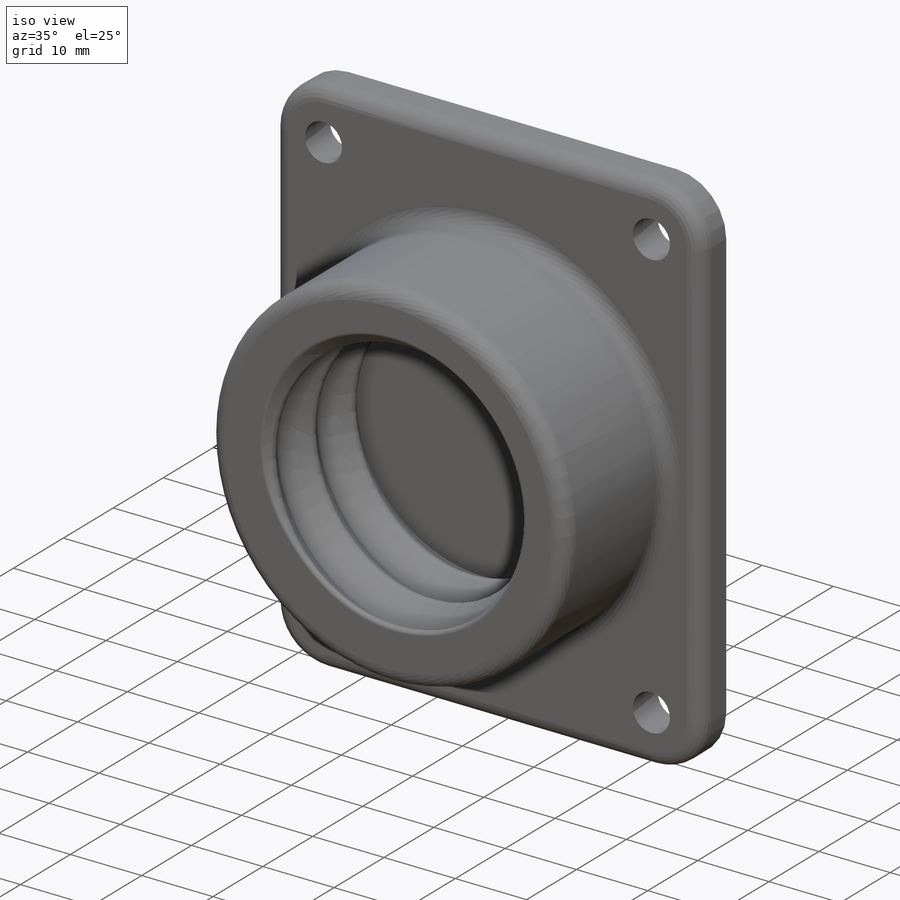
[diagram: iso view]
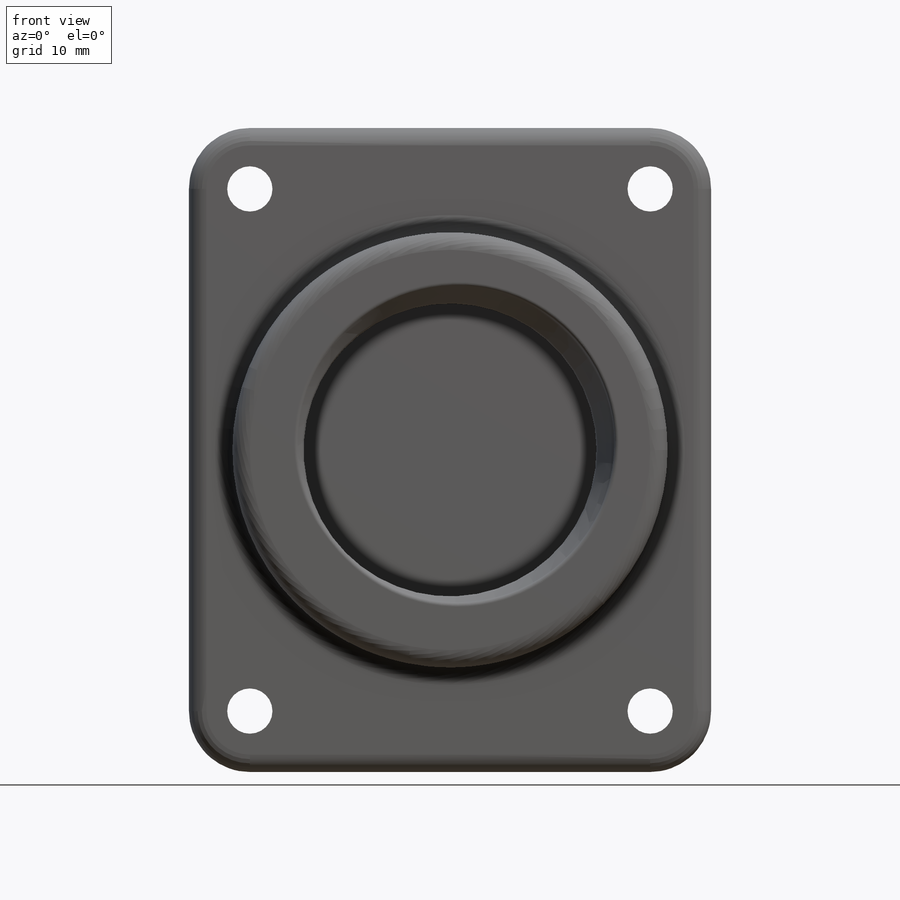
[diagram: front view]
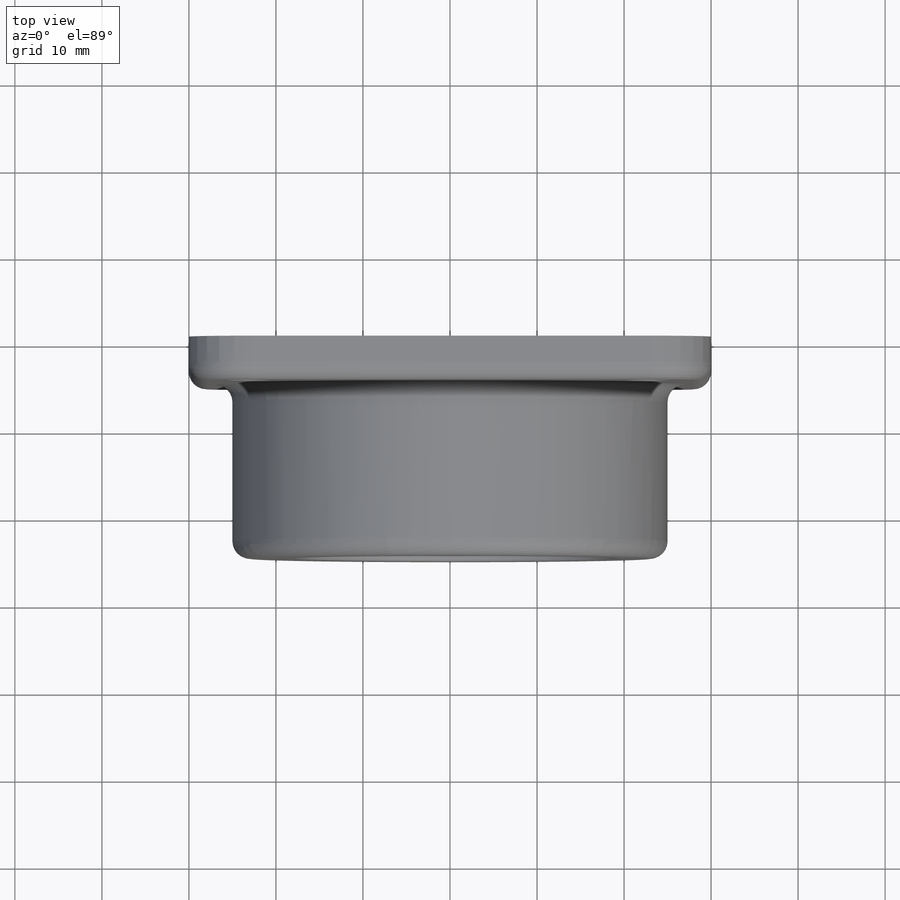
[diagram: top view]
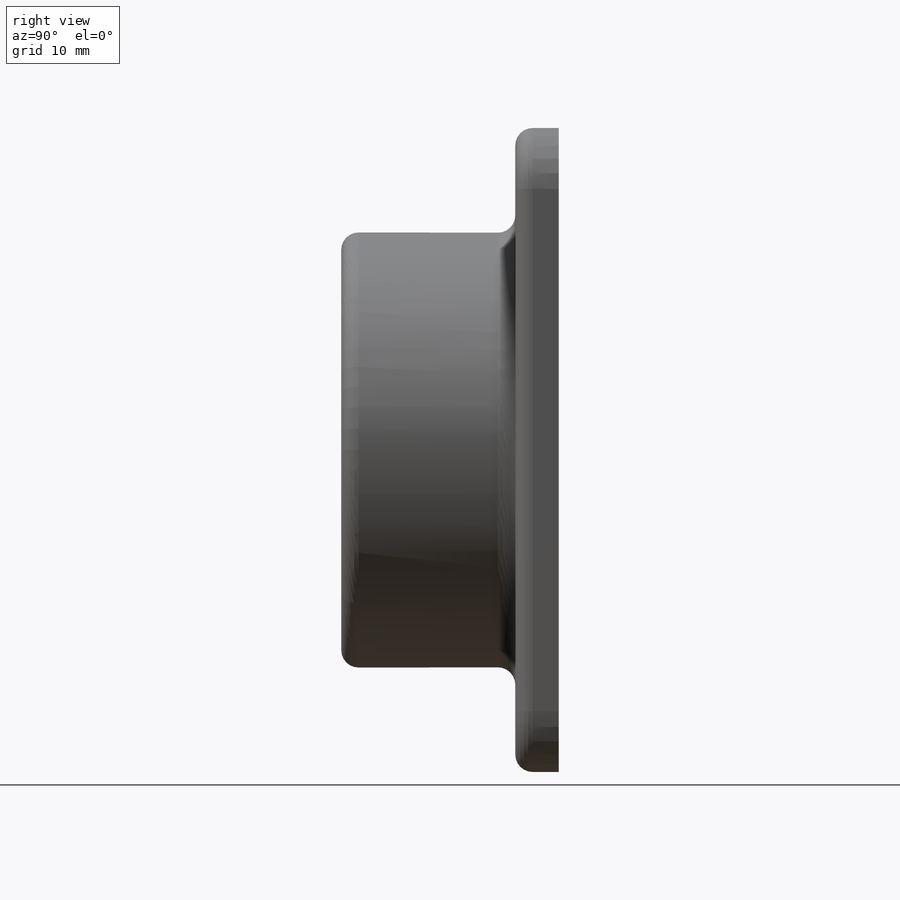
[diagram: right view]
SOLIDWORKS PART (.sldprt)
format: sldprt  version: not decoded by parser v0  size: 807,424 bytes
history: native  units: mm
features: sketch x6, fillet x3, extrude x2, cut_extrude x2, material x1, plane x1, helix x1, sweep x1 (+13 scaffold rows collapsed)
feature tree (30):
  scaffold x13  (default folders/planes/origin — collapsed)
  material  "ABS"
  sketch  "Sketch1"  dims[D3=7.0mm D4=40.0mm D5=55.0mm D1=60.0mm D2=74.0mm]
  extrude  "Boss-Extrude1"  Depth=5mm
  plane  "Plane1"
  sketch  "Sketch2"  dims[D1=50.0mm D2=40.5mm]
  extrude  "Boss-Extrude2"  Depth=20mm
  sketch  "Sketch3"  dims[c1.D3=1.0mm c1.D1=3.9mm c1.D2=3.5mm c2.D2=110.0deg c2.D1=~3.313938mm c3.D1=90.0deg c4.D1=~3.313938mm c5.D1=270.0deg c6.D1=~3.313938mm c7.D1=110.0deg c7.D2=3.9mm c7.D4=20.5mm]
  sketch  "Sketch4"
  helix  "Helix/Spiral1"  Pitch=32mm
  sweep  "Sweep1"
  sketch  "Sketch5"
  cut_extrude  "Cut-Extrude1"  Depth=60mm
  fillet  "Fillet1"  Radius=1mm
  fillet  "Fillet2"  Radius=0.5mm
  sketch  "Sketch7"  dims[D1=~49.099402mm D2=46.0mm D3=60.0mm]
  cut_extrude  "Cut-Extrude2"  [1 undecoded]
  fillet  "Fillet3"  Radius=2mm
decode coverage: 11 of 15 modeling features carry decoded parameters
note: ~ marks probable driven/reference dimensions
note: 1 parameter value undecoded
note: suppression state not decoded; provenance and decode notes live in map.json
